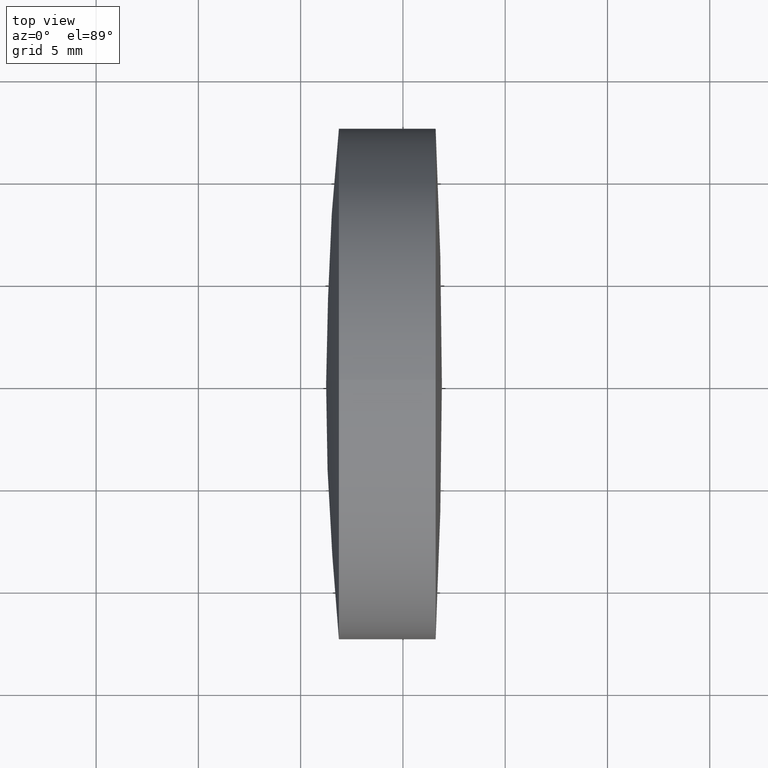
[diagram: clean part render]
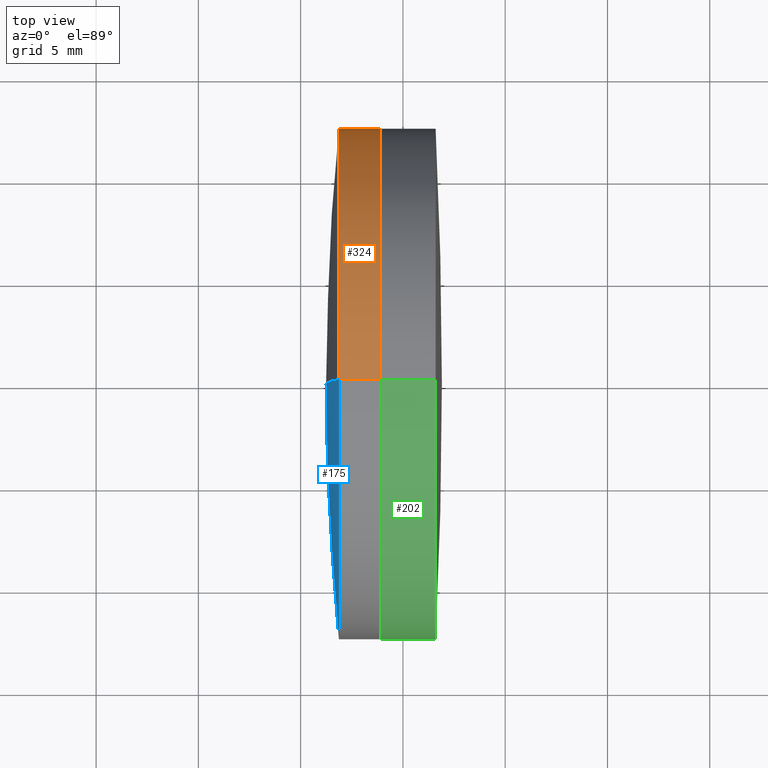
[diagram: same view with three faces highlighted in distinct colors, each labeled with its STEP entity id]
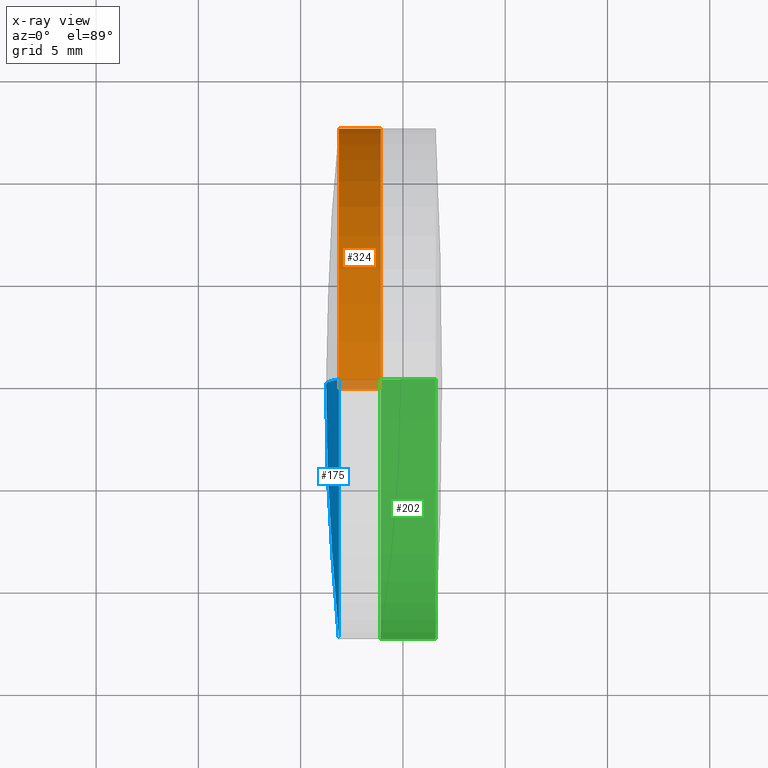
[diagram: x-ray of the same camera — body ghosted, the three highlighted faces saturated]
A machine part, top view with three faces highlighted in distinct colors.
The next image is the same camera in x-ray (body ghosted, the three faces saturated) — at least one of them is partly hidden behind the body in this view.
Their STEP definitions:

[orange] entity #324 — the highlighted cylindrical surface (partial cylindrical patch) has radius 12.5 mm, axis along (-1, -0, -0).
#5 = DIRECTION ( 'NONE',  ( 0.0000000000000000000, 0.0000000000000000000, 1.000000000000000000 ) ) ;
#23 = ORIENTED_EDGE ( 'NONE', *, *, #35, .T. ) ;
#25 = DIRECTION ( 'NONE',  ( -1.000000000000000000, -0.0000000000000000000, -0.0000000000000000000 ) ) ;
#27 = CARTESIAN_POINT ( 'NONE',  ( 93.91225861228011200, 0.0000000000000000000, 12.50000000000000000 ) ) ;
#35 = EDGE_CURVE ( 'NONE', #59, #88, #249, .T. ) ;
#37 = ORIENTED_EDGE ( 'NONE', *, *, #75, .F. ) ;
#38 = ORIENTED_EDGE ( 'NONE', *, *, #341, .T. ) ;
#42 = AXIS2_PLACEMENT_3D ( 'NONE', #98, #25, #80 ) ;
#45 = VERTEX_POINT ( 'NONE', #56 ) ;
#55 = CIRCLE ( 'NONE', #86, 12.50000000000000200 ) ;
#56 = CARTESIAN_POINT ( 'NONE',  ( 91.87023339387808100, -1.530808498934183400E-015, 12.49999999999993400 ) ) ;
#59 = VERTEX_POINT ( 'NONE', #115 ) ;
#74 = CIRCLE ( 'NONE', #315, 12.50000000000000000 ) ;
#75 = EDGE_CURVE ( 'NONE', #45, #88, #55, .T. ) ;
#80 = DIRECTION ( 'NONE',  ( 0.0000000000000000000, 0.0000000000000000000, 1.000000000000000000 ) ) ;
#86 = AXIS2_PLACEMENT_3D ( 'NONE', #90, #261, #323 ) ;
#88 = VERTEX_POINT ( 'NONE', #223 ) ;
#90 = CARTESIAN_POINT ( 'NONE',  ( 91.87023339387808100, 0.0000000000000000000, 0.0000000000000000000 ) ) ;
#96 = LINE ( 'NONE', #241, #156 ) ;
#98 = CARTESIAN_POINT ( 'NONE',  ( -9.702612178336682500, 0.0000000000000000000, 0.0000000000000000000 ) ) ;
#115 = CARTESIAN_POINT ( 'NONE',  ( 93.91225861228011200, 1.530808498934191500E-015, -12.50000000000000000 ) ) ;
#116 = CARTESIAN_POINT ( 'NONE',  ( 93.91225861228011200, 0.0000000000000000000, 0.0000000000000000000 ) ) ;
#141 = CARTESIAN_POINT ( 'NONE',  ( -9.702612178336682500, 1.530808498934191500E-015, -12.50000000000000000 ) ) ;
#156 = VECTOR ( 'NONE', #282, 1000.000000000000000 ) ;
#166 = EDGE_CURVE ( 'NONE', #297, #45, #96, .T. ) ;
#177 = ORIENTED_EDGE ( 'NONE', *, *, #166, .F. ) ;
#220 = VECTOR ( 'NONE', #309, 1000.000000000000000 ) ;
#223 = CARTESIAN_POINT ( 'NONE',  ( 91.87023339387808100, 0.0000000000000000000, -12.49999999999993400 ) ) ;
#241 = CARTESIAN_POINT ( 'NONE',  ( -9.702612178336682500, 0.0000000000000000000, 12.50000000000000000 ) ) ;
#249 = LINE ( 'NONE', #141, #220 ) ;
#260 = FACE_OUTER_BOUND ( 'NONE', #263, .T. ) ;
#261 = DIRECTION ( 'NONE',  ( -1.000000000000000000, -0.0000000000000000000, -0.0000000000000000000 ) ) ;
#263 = EDGE_LOOP ( 'NONE', ( #38, #23, #37, #177 ) ) ;
#282 = DIRECTION ( 'NONE',  ( -1.000000000000000000, -0.0000000000000000000, -0.0000000000000000000 ) ) ;
#297 = VERTEX_POINT ( 'NONE', #27 ) ;
#305 = DIRECTION ( 'NONE',  ( -1.000000000000000000, -0.0000000000000000000, -0.0000000000000000000 ) ) ;
#309 = DIRECTION ( 'NONE',  ( -1.000000000000000000, -0.0000000000000000000, -0.0000000000000000000 ) ) ;
#315 = AXIS2_PLACEMENT_3D ( 'NONE', #116, #305, #5 ) ;
#321 = CYLINDRICAL_SURFACE ( 'NONE', #42, 12.50000000000000000 ) ;
#323 = DIRECTION ( 'NONE',  ( 0.0000000000000000000, 0.0000000000000000000, 1.000000000000000000 ) ) ;
#324 = ADVANCED_FACE ( 'NONE', ( #260 ), #321, .T. ) ;
#341 = EDGE_CURVE ( 'NONE', #297, #59, #74, .T. ) ;

[blue] entity #175 — the highlighted spherical surface has radius 125.2 mm.
#15 = DIRECTION ( 'NONE',  ( -1.000000000000000000, -0.0000000000000000000, -0.0000000000000000000 ) ) ;
#22 = CARTESIAN_POINT ( 'NONE',  ( 91.87023339387808100, 0.0000000000000000000, 0.0000000000000000000 ) ) ;
#43 = CIRCLE ( 'NONE', #194, 12.50000000000000200 ) ;
#45 = VERTEX_POINT ( 'NONE', #56 ) ;
#46 = DIRECTION ( 'NONE',  ( 0.0000000000000000000, 1.000000000000000000, -0.0000000000000000000 ) ) ;
#56 = CARTESIAN_POINT ( 'NONE',  ( 91.87023339387808100, -1.530808498934183400E-015, 12.49999999999993400 ) ) ;
#58 = FACE_OUTER_BOUND ( 'NONE', #252, .T. ) ;
#61 = CARTESIAN_POINT ( 'NONE',  ( 216.4446689735747200, 0.0000000000000000000, 3.752398377835878400E-016 ) ) ;
#72 = ORIENTED_EDGE ( 'NONE', *, *, #214, .T. ) ;
#79 = DIRECTION ( 'NONE',  ( -0.0000000000000000000, -1.000000000000000000, -0.0000000000000000000 ) ) ;
#87 = DIRECTION ( 'NONE',  ( 0.0000000000000000000, 0.0000000000000000000, -1.000000000000000000 ) ) ;
#88 = VERTEX_POINT ( 'NONE', #223 ) ;
#103 = CARTESIAN_POINT ( 'NONE',  ( 216.4446689735747200, 0.0000000000000000000, 3.752398377835878400E-016 ) ) ;
#105 = AXIS2_PLACEMENT_3D ( 'NONE', #258, #224, #343 ) ;
#110 = VERTEX_POINT ( 'NONE', #158 ) ;
#158 = CARTESIAN_POINT ( 'NONE',  ( 91.24466897357477500, 0.0000000000000000000, -7.291049124878839800E-015 ) ) ;
#165 = AXIS2_PLACEMENT_3D ( 'NONE', #61, #46, #304 ) ;
#175 = ADVANCED_FACE ( 'NONE', ( #58 ), #292, .T. ) ;
#179 = EDGE_CURVE ( 'NONE', #45, #110, #312, .T. ) ;
#194 = AXIS2_PLACEMENT_3D ( 'NONE', #22, #15, #264 ) ;
#214 = EDGE_CURVE ( 'NONE', #88, #45, #43, .T. ) ;
#223 = CARTESIAN_POINT ( 'NONE',  ( 91.87023339387808100, 0.0000000000000000000, -12.49999999999993400 ) ) ;
#224 = DIRECTION ( 'NONE',  ( 0.0000000000000000000, -1.000000000000000000, -1.224646799147353200E-016 ) ) ;
#243 = ORIENTED_EDGE ( 'NONE', *, *, #334, .F. ) ;
#252 = EDGE_LOOP ( 'NONE', ( #72, #293, #243 ) ) ;
#258 = CARTESIAN_POINT ( 'NONE',  ( 216.4446689735747200, 0.0000000000000000000, 3.752398377835878400E-016 ) ) ;
#264 = DIRECTION ( 'NONE',  ( 0.0000000000000000000, 0.0000000000000000000, 1.000000000000000000 ) ) ;
#292 = SPHERICAL_SURFACE ( 'NONE', #335, 125.1999999999999500 ) ;
#293 = ORIENTED_EDGE ( 'NONE', *, *, #179, .T. ) ;
#304 = DIRECTION ( 'NONE',  ( 0.0000000000000000000, 0.0000000000000000000, 1.000000000000000000 ) ) ;
#307 = CIRCLE ( 'NONE', #165, 125.1999999999999500 ) ;
#312 = CIRCLE ( 'NONE', #105, 125.1999999999999500 ) ;
#334 = EDGE_CURVE ( 'NONE', #88, #110, #307, .T. ) ;
#335 = AXIS2_PLACEMENT_3D ( 'NONE', #103, #79, #87 ) ;
#343 = DIRECTION ( 'NONE',  ( 0.0000000000000000000, 1.224646799147353200E-016, -1.000000000000000000 ) ) ;

[green] entity #202 — the highlighted cylindrical surface (partial cylindrical patch) has radius 12.5 mm, axis along (-1, -0, -0).
#6 = AXIS2_PLACEMENT_3D ( 'NONE', #53, #20, #36 ) ;
#9 = EDGE_CURVE ( 'NONE', #317, #117, #212, .T. ) ;
#20 = DIRECTION ( 'NONE',  ( -1.000000000000000000, -0.0000000000000000000, -0.0000000000000000000 ) ) ;
#30 = VERTEX_POINT ( 'NONE', #134 ) ;
#36 = DIRECTION ( 'NONE',  ( 0.0000000000000000000, 0.0000000000000000000, 1.000000000000000000 ) ) ;
#39 = CARTESIAN_POINT ( 'NONE',  ( -0.5519199926577972300, 0.0000000000000000000, 12.49999999999999300 ) ) ;
#49 = FACE_OUTER_BOUND ( 'NONE', #301, .T. ) ;
#53 = CARTESIAN_POINT ( 'NONE',  ( 93.91225861228009800, 0.0000000000000000000, 0.0000000000000000000 ) ) ;
#64 = CARTESIAN_POINT ( 'NONE',  ( -0.5519199926577972300, 1.530808498934190500E-015, -12.49999999999999300 ) ) ;
#66 = ORIENTED_EDGE ( 'NONE', *, *, #218, .F. ) ;
#99 = CIRCLE ( 'NONE', #6, 12.50000000000005200 ) ;
#109 = CARTESIAN_POINT ( 'NONE',  ( 93.91225861228009800, 0.0000000000000000000, 12.50000000000006400 ) ) ;
#117 = VERTEX_POINT ( 'NONE', #109 ) ;
#118 = CARTESIAN_POINT ( 'NONE',  ( 96.59932540629262100, 1.530808498934187000E-015, -12.49999999999993200 ) ) ;
#121 = VECTOR ( 'NONE', #316, 1000.000000000000000 ) ;
#129 = DIRECTION ( 'NONE',  ( -1.000000000000000000, -0.0000000000000000000, -0.0000000000000000000 ) ) ;
#134 = CARTESIAN_POINT ( 'NONE',  ( 93.91225861228009800, 1.530808498934199200E-015, -12.50000000000006400 ) ) ;
#137 = VERTEX_POINT ( 'NONE', #118 ) ;
#153 = CYLINDRICAL_SURFACE ( 'NONE', #269, 12.49999999999999300 ) ;
#161 = EDGE_CURVE ( 'NONE', #30, #117, #99, .T. ) ;
#183 = EDGE_CURVE ( 'NONE', #137, #317, #240, .T. ) ;
#197 = AXIS2_PLACEMENT_3D ( 'NONE', #239, #310, #294 ) ;
#200 = ORIENTED_EDGE ( 'NONE', *, *, #161, .F. ) ;
#202 = ADVANCED_FACE ( 'NONE', ( #49 ), #153, .T. ) ;
#212 = LINE ( 'NONE', #39, #121 ) ;
#218 = EDGE_CURVE ( 'NONE', #137, #30, #278, .T. ) ;
#225 = DIRECTION ( 'NONE',  ( 0.0000000000000000000, 0.0000000000000000000, 1.000000000000000000 ) ) ;
#239 = CARTESIAN_POINT ( 'NONE',  ( 96.59932540629262100, 0.0000000000000000000, 0.0000000000000000000 ) ) ;
#240 = CIRCLE ( 'NONE', #197, 12.49999999999993200 ) ;
#259 = ORIENTED_EDGE ( 'NONE', *, *, #9, .T. ) ;
#266 = DIRECTION ( 'NONE',  ( -1.000000000000000000, -0.0000000000000000000, -0.0000000000000000000 ) ) ;
#269 = AXIS2_PLACEMENT_3D ( 'NONE', #342, #129, #225 ) ;
#278 = LINE ( 'NONE', #64, #281 ) ;
#281 = VECTOR ( 'NONE', #266, 1000.000000000000000 ) ;
#294 = DIRECTION ( 'NONE',  ( 0.0000000000000000000, 0.0000000000000000000, 1.000000000000000000 ) ) ;
#301 = EDGE_LOOP ( 'NONE', ( #66, #306, #259, #200 ) ) ;
#306 = ORIENTED_EDGE ( 'NONE', *, *, #183, .T. ) ;
#310 = DIRECTION ( 'NONE',  ( -1.000000000000000000, -0.0000000000000000000, -0.0000000000000000000 ) ) ;
#316 = DIRECTION ( 'NONE',  ( -1.000000000000000000, -0.0000000000000000000, -0.0000000000000000000 ) ) ;
#317 = VERTEX_POINT ( 'NONE', #337 ) ;
#337 = CARTESIAN_POINT ( 'NONE',  ( 96.59932540629262100, 0.0000000000000000000, 12.49999999999993200 ) ) ;
#342 = CARTESIAN_POINT ( 'NONE',  ( -0.5519199926577972300, 0.0000000000000000000, 0.0000000000000000000 ) ) ;